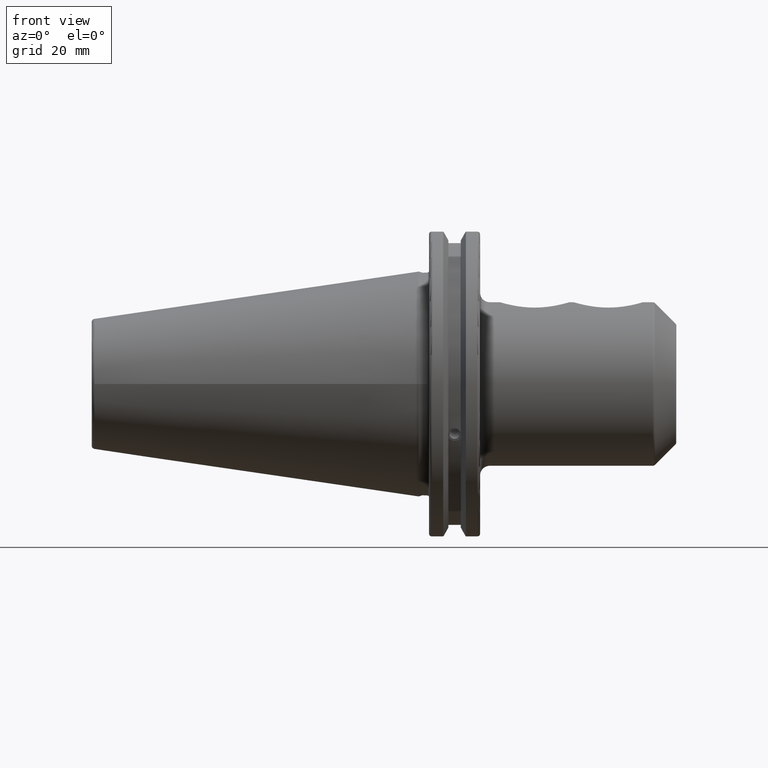
[diagram: clean part render]
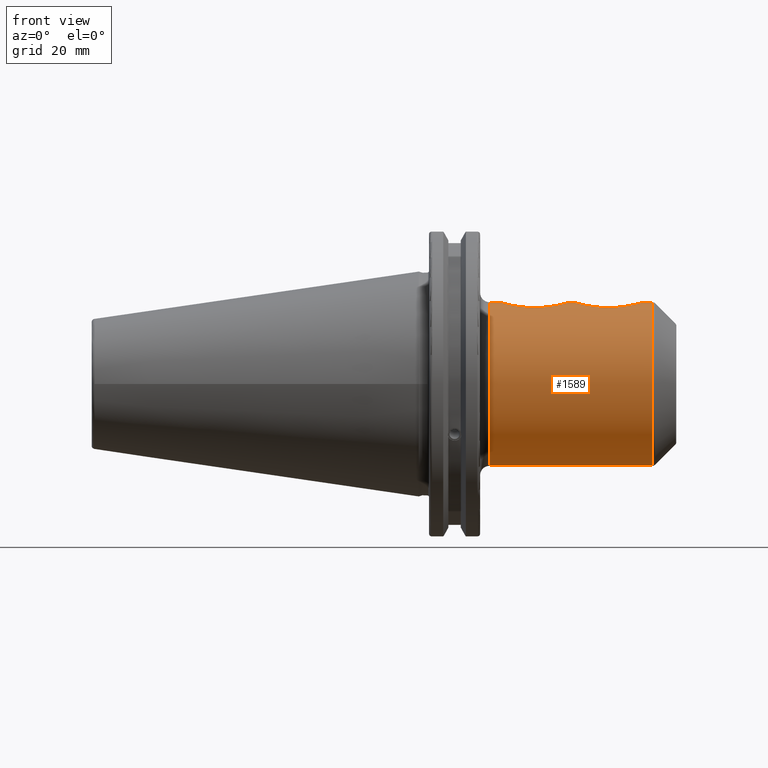
[diagram: same view with one face highlighted and labeled with its STEP entity id]
A machine part, front view. The second image highlights one B-rep face of the part: STEP entity #1589.
In plain terms, the highlighted cylindrical surface (bore or boss wall) has radius 25.4 mm, axis along (1, 0, 0).
Its self-contained STEP definition (entity closure, byte-faithful):
#61=FACE_BOUND('',#314,.T.);
#62=FACE_BOUND('',#315,.T.);
#139=CIRCLE('',#1721,25.4);
#140=CIRCLE('',#1722,25.4);
#141=CIRCLE('',#1724,25.4);
#215=FACE_OUTER_BOUND('',#313,.T.);
#313=EDGE_LOOP('',(#1131,#1132,#1133,#1134,#1135));
#314=EDGE_LOOP('',(#1136,#1137));
#315=EDGE_LOOP('',(#1138,#1139));
#419=B_SPLINE_CURVE_WITH_KNOTS('',3,(#2458,#2459,#2460,#2461,#2462,#2463,
#2464,#2465,#2466,#2467,#2468,#2469,#2470,#2471,#2472,#2473,#2474,#2475,
#2476,#2477,#2478,#2479,#2480,#2481,#2482,#2483),.UNSPECIFIED.,.F.,.F.,
(4,2,2,2,2,2,2,2,2,2,2,2,4),(0.,0.367899580708899,0.735799161417799,1.11996741515598,
1.50413566889415,1.88830392263233,2.27247217637051,2.64037175707941,3.00827133778831,
3.37617091849721,3.7440704992061,4.12823875294428,4.51240700668246),
 .UNSPECIFIED.);
#420=B_SPLINE_CURVE_WITH_KNOTS('',3,(#2484,#2485,#2486,#2487,#2488,#2489,
#2490,#2491,#2492,#2493),.UNSPECIFIED.,.F.,.F.,(4,2,2,2,4),(4.51240700668246,
4.89657526042064,5.28074351415881,5.64864309486771,6.01654267557661),
 .UNSPECIFIED.);
#423=B_SPLINE_CURVE_WITH_KNOTS('',3,(#2543,#2544,#2545,#2546,#2547,#2548,
#2549,#2550,#2551,#2552,#2553,#2554,#2555,#2556,#2557,#2558,#2559,#2560,
#2561,#2562,#2563,#2564,#2565,#2566,#2567,#2568),.UNSPECIFIED.,.F.,.F.,
(4,2,2,2,2,2,2,2,2,2,2,2,4),(0.,0.367899580708899,0.735799161417799,1.11996741515598,
1.50413566889415,1.88830392263233,2.27247217637051,2.64037175707941,3.00827133778831,
3.37617091849721,3.7440704992061,4.12823875294428,4.51240700668246),
 .UNSPECIFIED.);
#424=B_SPLINE_CURVE_WITH_KNOTS('',3,(#2569,#2570,#2571,#2572,#2573,#2574,
#2575,#2576,#2577,#2578),.UNSPECIFIED.,.F.,.F.,(4,2,2,2,4),(4.51240700668246,
4.89657526042064,5.28074351415881,5.64864309486771,6.01654267557661),
 .UNSPECIFIED.);
#471=LINE('',#2614,#565);
#565=VECTOR('',#1942,25.4);
#665=VERTEX_POINT('',#2455);
#666=VERTEX_POINT('',#2457);
#671=VERTEX_POINT('',#2540);
#672=VERTEX_POINT('',#2542);
#682=VERTEX_POINT('',#2607);
#683=VERTEX_POINT('',#2609);
#684=VERTEX_POINT('',#2613);
#834=EDGE_CURVE('',#666,#665,#419,.T.);
#835=EDGE_CURVE('',#665,#666,#420,.T.);
#842=EDGE_CURVE('',#672,#671,#423,.T.);
#843=EDGE_CURVE('',#671,#672,#424,.T.);
#858=EDGE_CURVE('',#682,#683,#139,.T.);
#859=EDGE_CURVE('',#683,#682,#140,.T.);
#860=EDGE_CURVE('',#683,#684,#471,.T.);
#861=EDGE_CURVE('',#684,#684,#141,.T.);
#1131=ORIENTED_EDGE('',*,*,#858,.F.);
#1132=ORIENTED_EDGE('',*,*,#859,.F.);
#1133=ORIENTED_EDGE('',*,*,#860,.T.);
#1134=ORIENTED_EDGE('',*,*,#861,.F.);
#1135=ORIENTED_EDGE('',*,*,#860,.F.);
#1136=ORIENTED_EDGE('',*,*,#834,.T.);
#1137=ORIENTED_EDGE('',*,*,#835,.T.);
#1138=ORIENTED_EDGE('',*,*,#842,.T.);
#1139=ORIENTED_EDGE('',*,*,#843,.T.);
#1551=CYLINDRICAL_SURFACE('',#1723,25.4);
#1589=ADVANCED_FACE('',(#215,#61,#62),#1551,.T.);
#1721=AXIS2_PLACEMENT_3D('',#2610,#1936,#1937);
#1722=AXIS2_PLACEMENT_3D('',#2611,#1938,#1939);
#1723=AXIS2_PLACEMENT_3D('',#2612,#1940,#1941);
#1724=AXIS2_PLACEMENT_3D('',#2615,#1943,#1944);
#1936=DIRECTION('center_axis',(1.,0.,0.));
#1937=DIRECTION('ref_axis',(0.,0.,-1.));
#1938=DIRECTION('center_axis',(1.,0.,0.));
#1939=DIRECTION('ref_axis',(0.,0.,-1.));
#1940=DIRECTION('center_axis',(1.,0.,0.));
#1941=DIRECTION('ref_axis',(0.,0.,1.));
#1942=DIRECTION('',(-1.,0.,0.));
#1943=DIRECTION('center_axis',(-1.,0.,0.));
#1944=DIRECTION('ref_axis',(0.,1.22464679914735E-16,-1.));
#2455=CARTESIAN_POINT('',(25.285,-1.31220904528639E-15,25.4));
#2457=CARTESIAN_POINT('',(36.,9.04858580143487,23.7335858014349));
#2458=CARTESIAN_POINT('Ctrl Pts',(36.,9.04858580143487,23.7335858014349));
#2459=CARTESIAN_POINT('Ctrl Pts',(37.2263319356963,9.04858580143487,23.7335858014349));
#2460=CARTESIAN_POINT('Ctrl Pts',(38.5468106639758,8.8575345581899,23.8093639099114));
#2461=CARTESIAN_POINT('Ctrl Pts',(41.0341372464573,8.0535545679292,24.0931941070544));
#2462=CARTESIAN_POINT('Ctrl Pts',(42.2014791976531,7.44086185648742,24.29757265639));
#2463=CARTESIAN_POINT('Ctrl Pts',(44.1680020870584,5.94128256563213,24.7081345807947));
#2464=CARTESIAN_POINT('Ctrl Pts',(45.0950630012437,4.92784760931752,24.9452012126383));
#2465=CARTESIAN_POINT('Ctrl Pts',(46.369825810911,2.59862736849903,25.2941476526526));
#2466=CARTESIAN_POINT('Ctrl Pts',(46.715,1.28056084579392,25.4));
#2467=CARTESIAN_POINT('Ctrl Pts',(46.715,-1.28056084579392,25.4));
#2468=CARTESIAN_POINT('Ctrl Pts',(46.369825810911,-2.59862736849904,25.2941476526526));
#2469=CARTESIAN_POINT('Ctrl Pts',(45.0950630012437,-4.92784760931753,24.9452012126383));
#2470=CARTESIAN_POINT('Ctrl Pts',(44.1680020870584,-5.94128256563213,24.7081345807947));
#2471=CARTESIAN_POINT('Ctrl Pts',(42.2014791976531,-7.44086185648742,24.29757265639));
#2472=CARTESIAN_POINT('Ctrl Pts',(41.0341372464573,-8.0535545679292,24.0931941070544));
#2473=CARTESIAN_POINT('Ctrl Pts',(38.5468106639758,-8.8575345581899,23.8093639099114));
#2474=CARTESIAN_POINT('Ctrl Pts',(37.2263319356963,-9.04858580143487,23.7335858014349));
#2475=CARTESIAN_POINT('Ctrl Pts',(34.7736680643037,-9.04858580143487,23.7335858014349));
#2476=CARTESIAN_POINT('Ctrl Pts',(33.4531893360242,-8.85753455818991,23.8093639099114));
#2477=CARTESIAN_POINT('Ctrl Pts',(30.9658627535427,-8.0535545679292,24.0931941070544));
#2478=CARTESIAN_POINT('Ctrl Pts',(29.7985208023469,-7.44086185648743,24.29757265639));
#2479=CARTESIAN_POINT('Ctrl Pts',(27.8319979129416,-5.94128256563214,24.7081345807947));
#2480=CARTESIAN_POINT('Ctrl Pts',(26.9049369987563,-4.92784760931754,24.9452012126383));
#2481=CARTESIAN_POINT('Ctrl Pts',(25.630174189089,-2.59862736849904,25.2941476526526));
#2482=CARTESIAN_POINT('Ctrl Pts',(25.285,-1.28056084579393,25.4));
#2483=CARTESIAN_POINT('Ctrl Pts',(25.285,-2.77555756156289E-16,25.4));
#2484=CARTESIAN_POINT('Ctrl Pts',(25.285,-2.08166817117217E-15,25.4));
#2485=CARTESIAN_POINT('Ctrl Pts',(25.285,1.28056084579392,25.4));
#2486=CARTESIAN_POINT('Ctrl Pts',(25.630174189089,2.59862736849904,25.2941476526526));
#2487=CARTESIAN_POINT('Ctrl Pts',(26.9049369987563,4.92784760931753,24.9452012126383));
#2488=CARTESIAN_POINT('Ctrl Pts',(27.8319979129416,5.94128256563213,24.7081345807947));
#2489=CARTESIAN_POINT('Ctrl Pts',(29.7985208023469,7.44086185648742,24.29757265639));
#2490=CARTESIAN_POINT('Ctrl Pts',(30.9658627535427,8.0535545679292,24.0931941070544));
#2491=CARTESIAN_POINT('Ctrl Pts',(33.4531893360242,8.85753455818991,23.8093639099114));
#2492=CARTESIAN_POINT('Ctrl Pts',(34.7736680643037,9.04858580143487,23.7335858014349));
#2493=CARTESIAN_POINT('Ctrl Pts',(36.,9.04858580143487,23.7335858014349));
#2540=CARTESIAN_POINT('',(48.185,-1.31220904528639E-15,25.4));
#2542=CARTESIAN_POINT('',(58.9,9.04858580143487,23.7335858014349));
#2543=CARTESIAN_POINT('Ctrl Pts',(58.9,9.04858580143487,23.7335858014349));
#2544=CARTESIAN_POINT('Ctrl Pts',(60.1263319356963,9.04858580143487,23.7335858014349));
#2545=CARTESIAN_POINT('Ctrl Pts',(61.4468106639758,8.8575345581899,23.8093639099114));
#2546=CARTESIAN_POINT('Ctrl Pts',(63.9341372464572,8.05355456792919,24.0931941070544));
#2547=CARTESIAN_POINT('Ctrl Pts',(65.1014791976531,7.44086185648742,24.29757265639));
#2548=CARTESIAN_POINT('Ctrl Pts',(67.0680020870584,5.94128256563213,24.7081345807947));
#2549=CARTESIAN_POINT('Ctrl Pts',(67.9950630012437,4.92784760931753,24.9452012126383));
#2550=CARTESIAN_POINT('Ctrl Pts',(69.269825810911,2.59862736849904,25.2941476526526));
#2551=CARTESIAN_POINT('Ctrl Pts',(69.615,1.28056084579392,25.4));
#2552=CARTESIAN_POINT('Ctrl Pts',(69.615,-1.28056084579392,25.4));
#2553=CARTESIAN_POINT('Ctrl Pts',(69.269825810911,-2.59862736849904,25.2941476526526));
#2554=CARTESIAN_POINT('Ctrl Pts',(67.9950630012437,-4.92784760931753,24.9452012126383));
#2555=CARTESIAN_POINT('Ctrl Pts',(67.0680020870584,-5.94128256563213,24.7081345807947));
#2556=CARTESIAN_POINT('Ctrl Pts',(65.1014791976531,-7.44086185648742,24.29757265639));
#2557=CARTESIAN_POINT('Ctrl Pts',(63.9341372464572,-8.05355456792919,24.0931941070544));
#2558=CARTESIAN_POINT('Ctrl Pts',(61.4468106639758,-8.8575345581899,23.8093639099114));
#2559=CARTESIAN_POINT('Ctrl Pts',(60.1263319356963,-9.04858580143487,23.7335858014349));
#2560=CARTESIAN_POINT('Ctrl Pts',(57.6736680643037,-9.04858580143487,23.7335858014349));
#2561=CARTESIAN_POINT('Ctrl Pts',(56.3531893360242,-8.85753455818991,23.8093639099114));
#2562=CARTESIAN_POINT('Ctrl Pts',(53.8658627535427,-8.0535545679292,24.0931941070544));
#2563=CARTESIAN_POINT('Ctrl Pts',(52.6985208023469,-7.44086185648743,24.29757265639));
#2564=CARTESIAN_POINT('Ctrl Pts',(50.7319979129416,-5.94128256563214,24.7081345807947));
#2565=CARTESIAN_POINT('Ctrl Pts',(49.8049369987563,-4.92784760931754,24.9452012126383));
#2566=CARTESIAN_POINT('Ctrl Pts',(48.530174189089,-2.59862736849904,25.2941476526526));
#2567=CARTESIAN_POINT('Ctrl Pts',(48.185,-1.28056084579393,25.4));
#2568=CARTESIAN_POINT('Ctrl Pts',(48.185,0.,25.4));
#2569=CARTESIAN_POINT('Ctrl Pts',(48.185,-1.94289029309402E-15,25.4));
#2570=CARTESIAN_POINT('Ctrl Pts',(48.185,1.28056084579392,25.4));
#2571=CARTESIAN_POINT('Ctrl Pts',(48.530174189089,2.59862736849904,25.2941476526526));
#2572=CARTESIAN_POINT('Ctrl Pts',(49.8049369987563,4.92784760931754,24.9452012126383));
#2573=CARTESIAN_POINT('Ctrl Pts',(50.7319979129416,5.94128256563214,24.7081345807947));
#2574=CARTESIAN_POINT('Ctrl Pts',(52.6985208023469,7.44086185648742,24.29757265639));
#2575=CARTESIAN_POINT('Ctrl Pts',(53.8658627535427,8.0535545679292,24.0931941070544));
#2576=CARTESIAN_POINT('Ctrl Pts',(56.3531893360242,8.85753455818991,23.8093639099114));
#2577=CARTESIAN_POINT('Ctrl Pts',(57.6736680643037,9.04858580143487,23.7335858014349));
#2578=CARTESIAN_POINT('Ctrl Pts',(58.9,9.04858580143487,23.7335858014349));
#2607=CARTESIAN_POINT('',(72.6857864376269,-3.11060286983428E-15,25.4));
#2609=CARTESIAN_POINT('',(72.6857864376269,3.11060286983428E-15,-25.4));
#2610=CARTESIAN_POINT('Origin',(72.6857864376269,0.,0.));
#2611=CARTESIAN_POINT('Origin',(72.6857864376269,0.,0.));
#2612=CARTESIAN_POINT('Origin',(46.075,0.,0.));
#2613=CARTESIAN_POINT('',(22.05,3.11060286983428E-15,-25.4));
#2614=CARTESIAN_POINT('',(46.075,3.11060286983428E-15,-25.4));
#2615=CARTESIAN_POINT('Origin',(22.05,0.,0.));